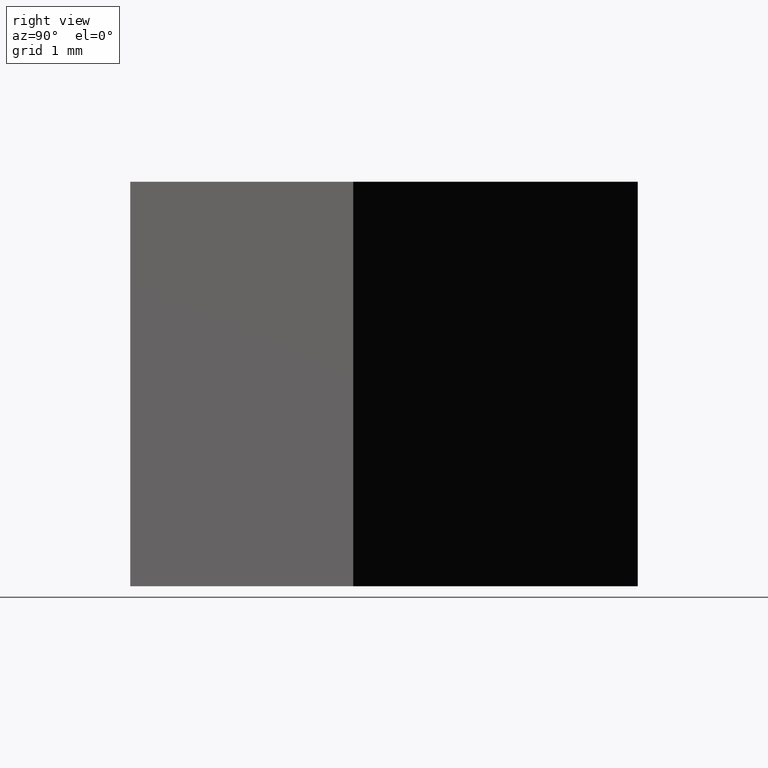
[diagram: clean part render]
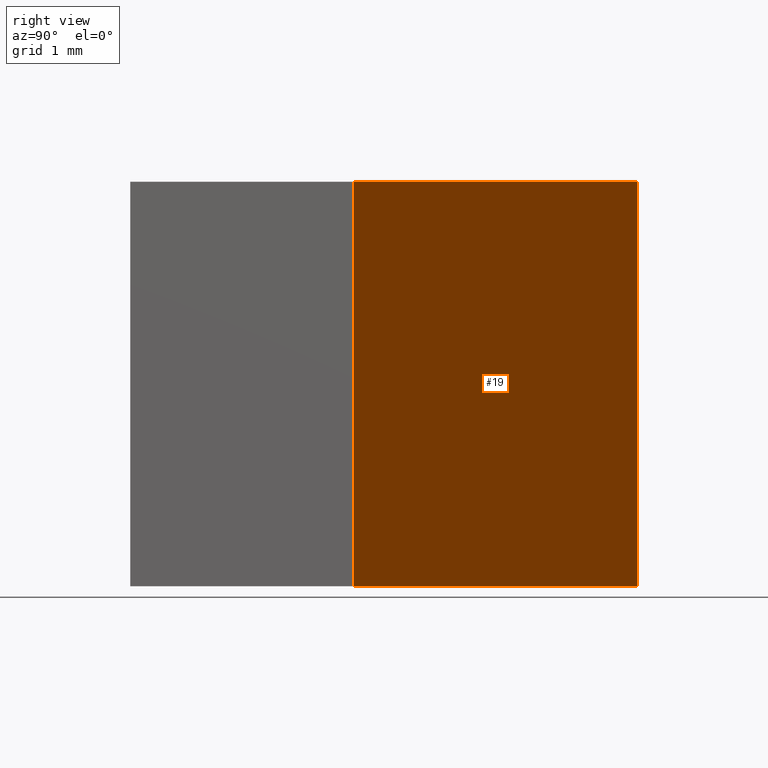
[diagram: same view with one face highlighted and labeled with its STEP entity id]
A machine part, right view. The second image highlights one B-rep face of the part: STEP entity #19.
In plain terms, the highlighted planar face has unit normal (-0.7032, -0.711, 0).
Its self-contained STEP definition (entity closure, byte-faithful):
#2 = VECTOR ( 'NONE', #42, 1000.000000000000000 ) ;
#5 = ORIENTED_EDGE ( 'NONE', *, *, #168, .F. ) ;
#9 = ORIENTED_EDGE ( 'NONE', *, *, #106, .T. ) ;
#14 = EDGE_LOOP ( 'NONE', ( #9, #5, #49, #21 ) ) ;
#17 = DIRECTION ( 'NONE',  ( -0.7109728236074620600, 0.7032194850056648900, 0.0000000000000000000 ) ) ;
#19 = ADVANCED_FACE ( 'NONE', ( #45 ), #55, .F. ) ;
#21 = ORIENTED_EDGE ( 'NONE', *, *, #95, .T. ) ;
#29 = CARTESIAN_POINT ( 'NONE',  ( 1.302506795028856200, 7.120576160069372700, 5.000000000000000000 ) ) ;
#35 = CARTESIAN_POINT ( 'NONE',  ( 4.857370913066168000, 3.604478735041047000, 0.0000000000000000000 ) ) ;
#38 = CARTESIAN_POINT ( 'NONE',  ( 4.857370913066168000, 3.604478735041047000, 5.000000000000000000 ) ) ;
#42 = DIRECTION ( 'NONE',  ( -0.0000000000000000000, -0.0000000000000000000, -1.000000000000000000 ) ) ;
#44 = CARTESIAN_POINT ( 'NONE',  ( 4.857370913066168000, 3.604478735041047000, 5.000000000000000000 ) ) ;
#45 = FACE_OUTER_BOUND ( 'NONE', #14, .T. ) ;
#49 = ORIENTED_EDGE ( 'NONE', *, *, #146, .F. ) ;
#54 = LINE ( 'NONE', #166, #98 ) ;
#55 = PLANE ( 'NONE',  #81 ) ;
#57 = VERTEX_POINT ( 'NONE', #88 ) ;
#69 = DIRECTION ( 'NONE',  ( -0.7032194850056650000, -0.7109728236074621700, 0.0000000000000000000 ) ) ;
#71 = VECTOR ( 'NONE', #17, 1000.000000000000100 ) ;
#73 = CARTESIAN_POINT ( 'NONE',  ( 4.857370913066168000, 3.604478735041047000, 5.000000000000000000 ) ) ;
#81 = AXIS2_PLACEMENT_3D ( 'NONE', #38, #69, #163 ) ;
#88 = CARTESIAN_POINT ( 'NONE',  ( 1.302506795028856200, 7.120576160069372700, 0.0000000000000000000 ) ) ;
#95 = EDGE_CURVE ( 'NONE', #156, #149, #145, .T. ) ;
#98 = VECTOR ( 'NONE', #99, 1000.000000000000000 ) ;
#99 = DIRECTION ( 'NONE',  ( -0.0000000000000000000, -0.0000000000000000000, -1.000000000000000000 ) ) ;
#106 = EDGE_CURVE ( 'NONE', #149, #57, #107, .T. ) ;
#107 = LINE ( 'NONE', #165, #71 ) ;
#119 = VECTOR ( 'NONE', #131, 1000.000000000000100 ) ;
#120 = VERTEX_POINT ( 'NONE', #29 ) ;
#131 = DIRECTION ( 'NONE',  ( -0.7109728236074620600, 0.7032194850056648900, 0.0000000000000000000 ) ) ;
#132 = CARTESIAN_POINT ( 'NONE',  ( 4.857370913066168000, 3.604478735041047000, 5.000000000000000000 ) ) ;
#145 = LINE ( 'NONE', #73, #2 ) ;
#146 = EDGE_CURVE ( 'NONE', #156, #120, #157, .T. ) ;
#149 = VERTEX_POINT ( 'NONE', #35 ) ;
#156 = VERTEX_POINT ( 'NONE', #132 ) ;
#157 = LINE ( 'NONE', #44, #119 ) ;
#163 = DIRECTION ( 'NONE',  ( 0.7109728236074620600, -0.7032194850056648900, 0.0000000000000000000 ) ) ;
#165 = CARTESIAN_POINT ( 'NONE',  ( 4.857370913066168000, 3.604478735041047000, 0.0000000000000000000 ) ) ;
#166 = CARTESIAN_POINT ( 'NONE',  ( 1.302506795028856200, 7.120576160069372700, 5.000000000000000000 ) ) ;
#168 = EDGE_CURVE ( 'NONE', #120, #57, #54, .T. ) ;